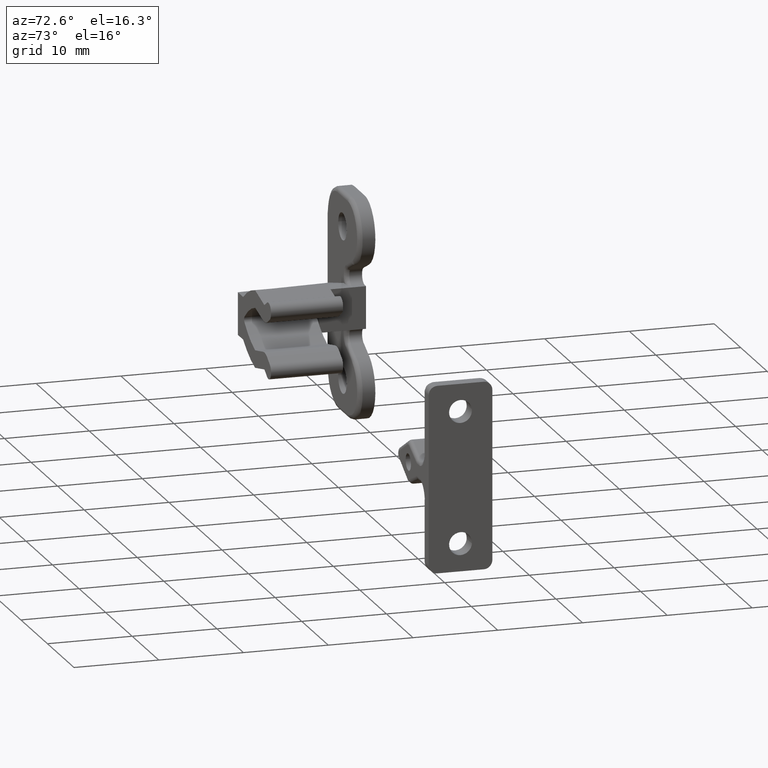
[diagram: clean part render]
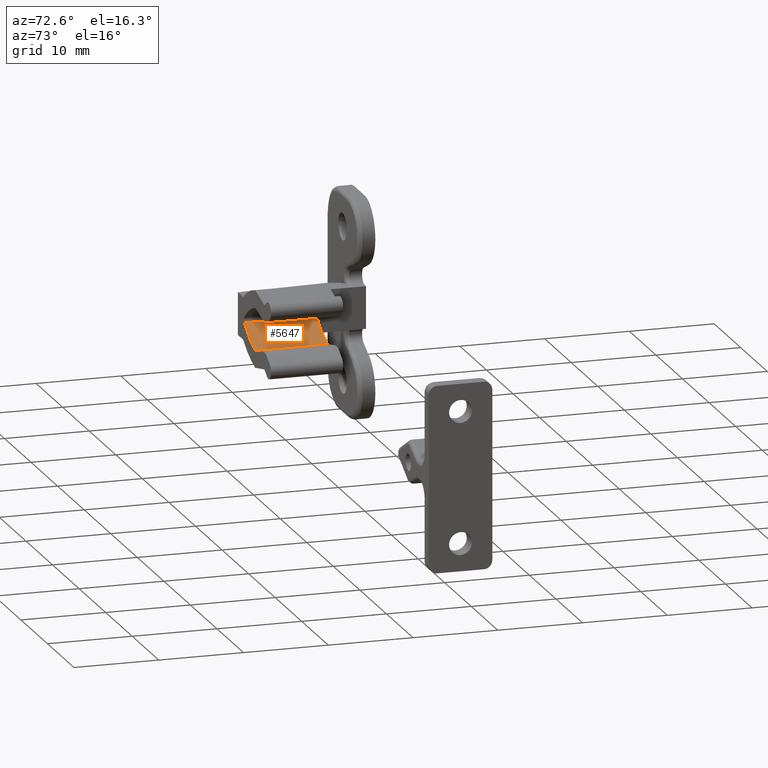
[diagram: same view with one face highlighted and labeled with its STEP entity id]
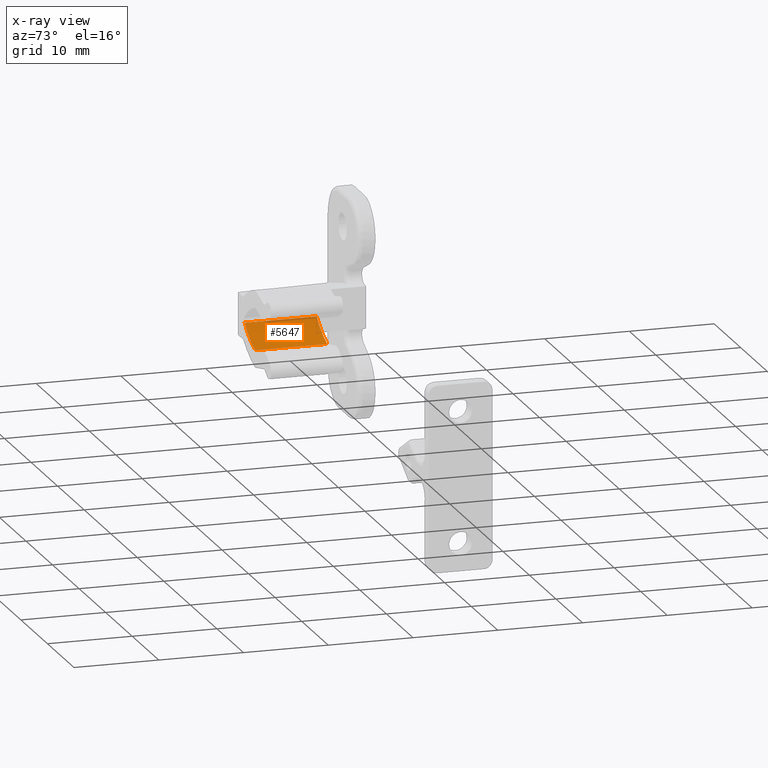
[diagram: x-ray of the same camera — body ghosted, the highlighted face saturated]
A machine part, auxiliary view. The second image highlights one B-rep face of the part: STEP entity #5647.
The next image is the same camera in x-ray: the body ghosted, the highlighted face saturated — about 5% of this face is hidden behind the body in this view.
In plain terms, the highlighted face is a freeform B-spline surface patch.
Its self-contained STEP definition (entity closure, byte-faithful):
#5554=CARTESIAN_POINT('',(9.046782628803150,-14.500000000000179,-0.376891131733864));
#5555=VERTEX_POINT('',#5554);
#5571=CARTESIAN_POINT('',(9.046782628803150,-6.0,-0.376891131733864));
#5572=VERTEX_POINT('',#5571);
#5573=CARTESIAN_POINT('',(9.046782628803150,-14.500000000000179,-0.376891131733864));
#5574=CARTESIAN_POINT('',(9.046782628803150,-6.0,-0.376891131733864));
#5575=QUASI_UNIFORM_CURVE('',1,(#5573,#5574),.UNSPECIFIED.,.F.,.U.);
#5576=EDGE_CURVE('',#5555,#5572,#5575,.T.);
#5595=CARTESIAN_POINT('',(8.879406673683581,-14.712500000000187,-0.227641993136100));
#5596=CARTESIAN_POINT('',(8.879406673683581,-5.782187499999995,-0.227641993136100));
#5597=CARTESIAN_POINT('',(10.763376085429657,-14.712500000000185,-1.945883973310933));
#5598=CARTESIAN_POINT('',(10.763376085429657,-5.782187499999995,-1.945883973310933));
#5599=CARTESIAN_POINT('',(13.240077195228313,-14.712500000000183,-2.552223696199100));
#5600=CARTESIAN_POINT('',(13.240077195228313,-5.782187499999998,-2.552223696199100));
#5608=(BOUNDED_SURFACE()B_SPLINE_SURFACE(1,2,((#5595,#5597,#5599),(#5596,#5598,#5600)),.UNSPECIFIED.,.F.,.F.,.U.)B_SPLINE_SURFACE_WITH_KNOTS((2,2),(3,3),(0.0,8.930312500000191),(0.0,5.019377344196508),.UNSPECIFIED.)GEOMETRIC_REPRESENTATION_ITEM()RATIONAL_B_SPLINE_SURFACE(((0.999492814983279,0.966427015584039,0.995210551426230),(0.999492814983279,0.966427015584039,0.995210551426230)))REPRESENTATION_ITEM('')SURFACE());
#5609=CARTESIAN_POINT('',(13.021976130926740,-6.0,-2.496218641559990));
#5610=VERTEX_POINT('',#5609);
#5611=CARTESIAN_POINT('',(9.046782628803147,-6.0,-0.376891131733869));
#5612=CARTESIAN_POINT('',(10.789402591391100,-6.000000000000001,-1.896054484135857));
#5613=CARTESIAN_POINT('',(13.021976130926740,-6.0,-2.496218641559990));
#5621=(BOUNDED_CURVE()B_SPLINE_CURVE(2,(#5611,#5612,#5613),.UNSPECIFIED.,.F.,.U.)CURVE()GEOMETRIC_REPRESENTATION_ITEM()QUASI_UNIFORM_CURVE()RATIONAL_B_SPLINE_CURVE((1.0,0.974302683367403,1.0))REPRESENTATION_ITEM(''));
#5622=EDGE_CURVE('',#5572,#5610,#5621,.T.);
#5623=ORIENTED_EDGE('',*,*,#5622,.F.);
#5624=ORIENTED_EDGE('',*,*,#5576,.F.);
#5625=CARTESIAN_POINT('',(13.021976130926740,-14.500000000000179,-2.496218641559990));
#5626=VERTEX_POINT('',#5625);
#5627=CARTESIAN_POINT('',(9.046782628803147,-14.500000000000179,-0.376891131733869));
#5628=CARTESIAN_POINT('',(10.789402591391100,-14.500000000000183,-1.896054484135857));
#5629=CARTESIAN_POINT('',(13.021976130926740,-14.500000000000179,-2.496218641559990));
#5637=(BOUNDED_CURVE()B_SPLINE_CURVE(2,(#5627,#5628,#5629),.UNSPECIFIED.,.F.,.U.)CURVE()GEOMETRIC_REPRESENTATION_ITEM()QUASI_UNIFORM_CURVE()RATIONAL_B_SPLINE_CURVE((1.0,0.974302683367403,1.0))REPRESENTATION_ITEM(''));
#5638=EDGE_CURVE('',#5555,#5626,#5637,.T.);
#5639=ORIENTED_EDGE('',*,*,#5638,.T.);
#5640=CARTESIAN_POINT('',(13.021976130926740,-14.500000000000179,-2.496218641559990));
#5641=CARTESIAN_POINT('',(13.021976130926740,-6.0,-2.496218641559990));
#5642=QUASI_UNIFORM_CURVE('',1,(#5640,#5641),.UNSPECIFIED.,.F.,.U.);
#5643=EDGE_CURVE('',#5626,#5610,#5642,.T.);
#5644=ORIENTED_EDGE('',*,*,#5643,.T.);
#5645=EDGE_LOOP('',(#5623,#5624,#5639,#5644));
#5646=FACE_OUTER_BOUND('',#5645,.T.);
#5647=ADVANCED_FACE('',(#5646),#5608,.F.);